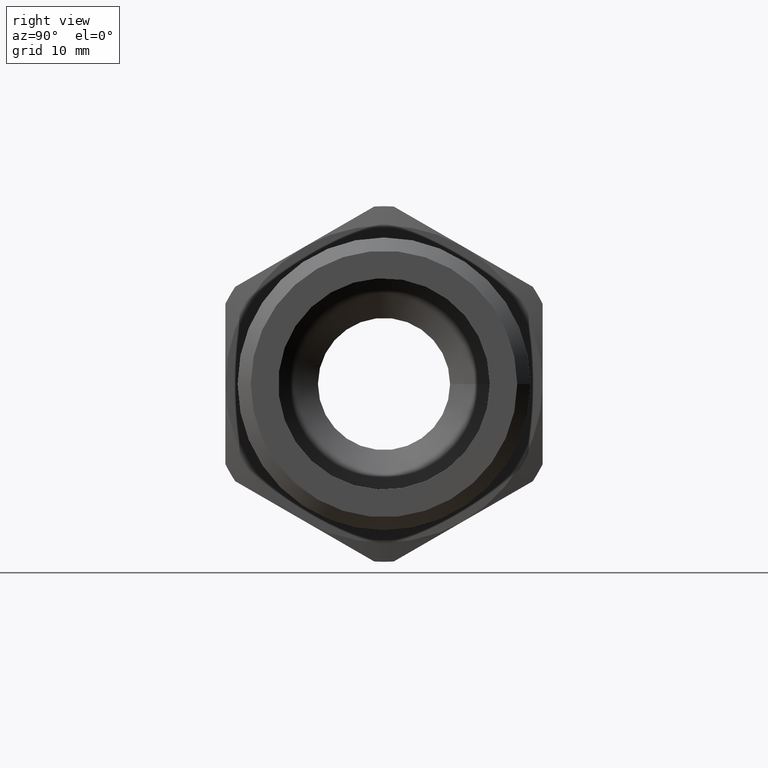
[diagram: clean part render]
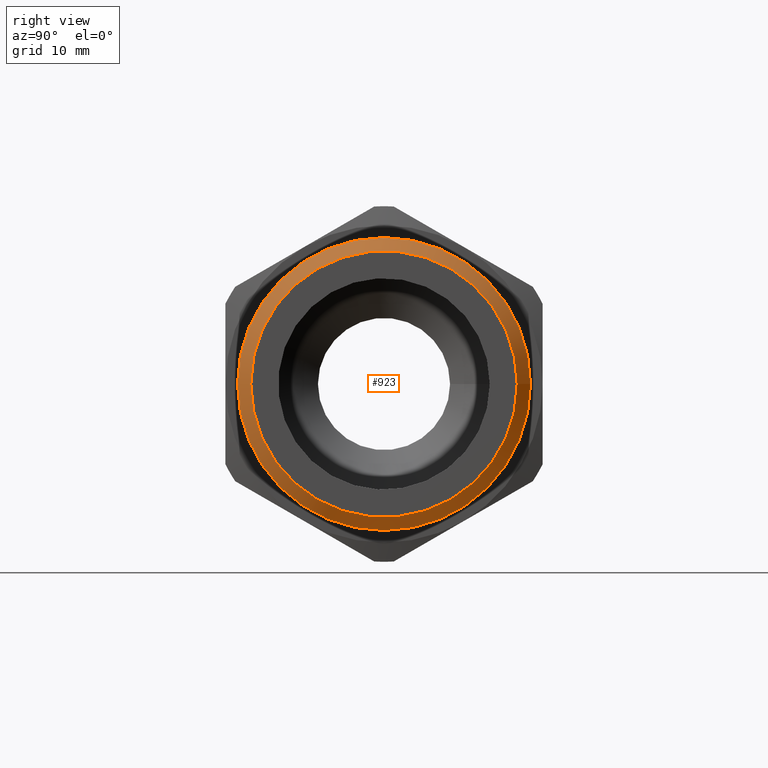
[diagram: same view with one face highlighted and labeled with its STEP entity id]
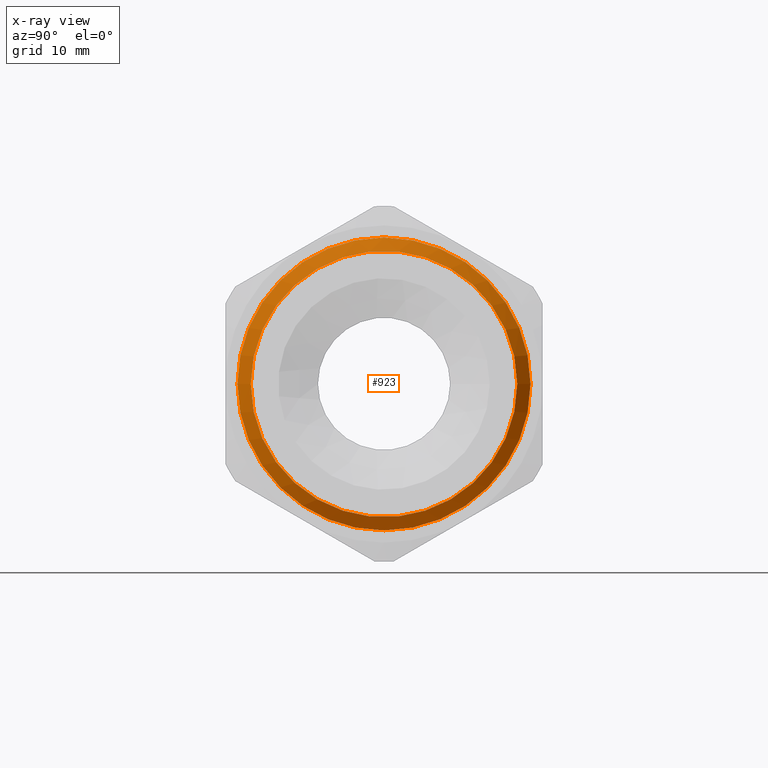
[diagram: x-ray of the same camera — body ghosted, the highlighted face saturated]
A machine part, right view. The second image highlights one B-rep face of the part: STEP entity #923.
The next image is the same camera in x-ray: the body ghosted, the highlighted face saturated — about 0% of this face is hidden behind the body in this view.
In plain terms, the highlighted conical surface has half-angle 45 deg.
Its self-contained STEP definition (entity closure, byte-faithful):
#896=CARTESIAN_POINT('',(62.250000000000007,0.0,0.0));
#897=DIRECTION('',(-1.0,0.0,0.0));
#898=DIRECTION('',(0.0,-1.0,0.0));
#899=AXIS2_PLACEMENT_3D('',#896,#897,#898);
#900=CONICAL_SURFACE('',#899,15.874500000000006,44.999999999999915);
#901=CARTESIAN_POINT('',(61.5,16.624500000000005,2.035914E-015));
#902=VERTEX_POINT('',#901);
#903=CARTESIAN_POINT('',(61.5,0.0,0.0));
#904=DIRECTION('',(1.0,0.0,0.0));
#905=DIRECTION('',(0.0,-1.0,0.0));
#906=AXIS2_PLACEMENT_3D('',#903,#904,#905);
#907=CIRCLE('',#906,16.624500000000005);
#908=EDGE_CURVE('',#902,#902,#907,.T.);
#909=ORIENTED_EDGE('',*,*,#908,.T.);
#910=EDGE_LOOP('',(#909));
#911=FACE_OUTER_BOUND('',#910,.T.);
#912=CARTESIAN_POINT('',(63.000000000000007,15.124500000000008,-1.852217E-015));
#913=VERTEX_POINT('',#912);
#914=CARTESIAN_POINT('',(63.000000000000007,0.0,0.0));
#915=DIRECTION('',(-1.0,0.0,0.0));
#916=DIRECTION('',(0.0,-1.0,0.0));
#917=AXIS2_PLACEMENT_3D('',#914,#915,#916);
#918=CIRCLE('',#917,15.124500000000008);
#919=EDGE_CURVE('',#913,#913,#918,.T.);
#920=ORIENTED_EDGE('',*,*,#919,.T.);
#921=EDGE_LOOP('',(#920));
#922=FACE_BOUND('',#921,.T.);
#923=ADVANCED_FACE('',(#911,#922),#900,.T.);